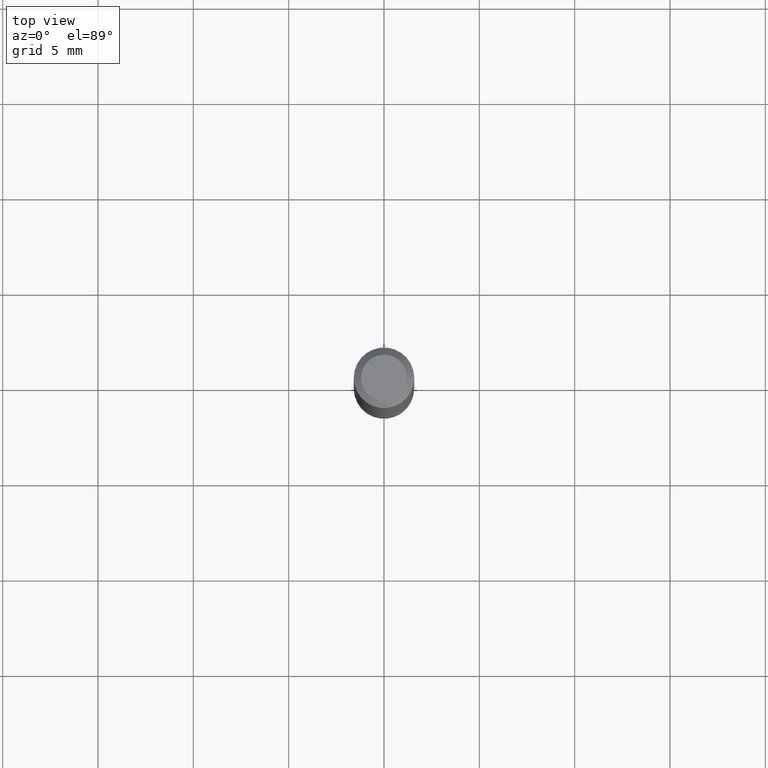
[diagram: clean part render]
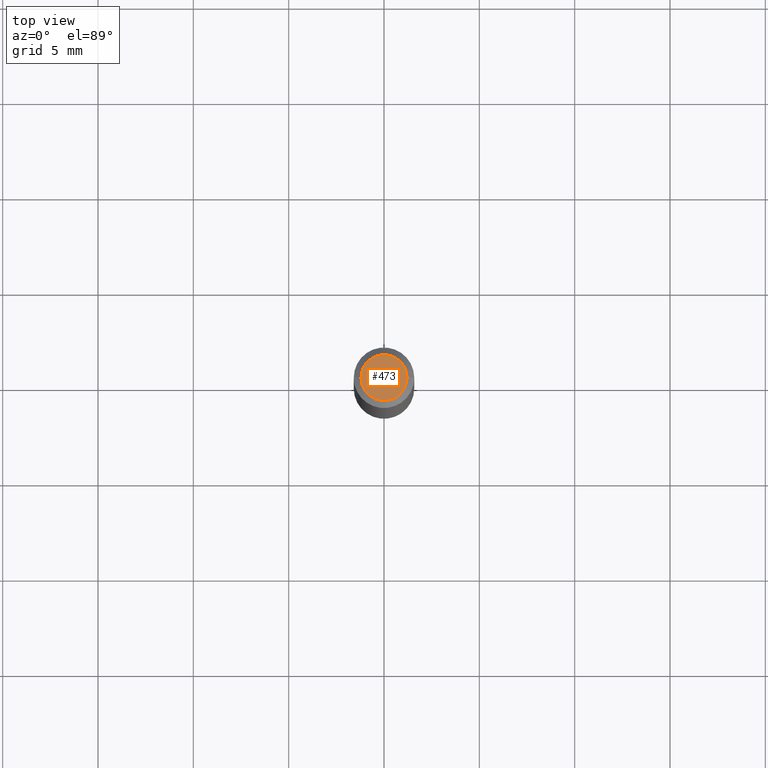
[diagram: same view with one face highlighted and labeled with its STEP entity id]
A machine part, top view. The second image highlights one B-rep face of the part: STEP entity #473.
In plain terms, the highlighted planar face has unit normal (0, -0, -1).
Its self-contained STEP definition (entity closure, byte-faithful):
#88 = CARTESIAN_POINT ( 'NONE',  ( -6.680649051745406845E-45, 9.538196290434862081E-31, 2.731847993664263218E-16 ) ) ;
#94 = DIRECTION ( 'NONE',  ( 1.000000000000000000, -6.982962677686266711E-15, 4.852736867747365086E-29 ) ) ;
#119 = DIRECTION ( 'NONE',  ( 2.438088387897960049E-29, -3.491481338843145188E-15, -1.000000000000000000 ) ) ;
#128 = VERTEX_POINT ( 'NONE', #223 ) ;
#133 = VERTEX_POINT ( 'NONE', #503 ) ;
#160 = FACE_OUTER_BOUND ( 'NONE', #397, .T. ) ;
#170 = CARTESIAN_POINT ( 'NONE',  ( -6.680649051745406845E-45, 9.538196290434862081E-31, 2.731847993664263218E-16 ) ) ;
#175 = ORIENTED_EDGE ( 'NONE', *, *, #325, .T. ) ;
#176 = CIRCLE ( 'NONE', #361, 0.04750000000000000749 ) ;
#205 = AXIS2_PLACEMENT_3D ( 'NONE', #275, #119, #239 ) ;
#223 = CARTESIAN_POINT ( 'NONE',  ( -0.04750000000000000749, 3.578768372314221353E-16, 2.731847993664239060E-16 ) ) ;
#225 = DIRECTION ( 'NONE',  ( -2.445468806185136597E-29, 3.491481338843145583E-15, 1.000000000000000000 ) ) ;
#239 = DIRECTION ( 'NONE',  ( -1.000000000000000000, 6.982962677686265922E-15, -4.876176775795935793E-29 ) ) ;
#275 = CARTESIAN_POINT ( 'NONE',  ( 3.316907271900976589E-16, 0.04750000000000000749, -2.925296391183627249E-17 ) ) ;
#304 = EDGE_CURVE ( 'NONE', #128, #133, #504, .T. ) ;
#325 = EDGE_CURVE ( 'NONE', #133, #128, #176, .T. ) ;
#361 = AXIS2_PLACEMENT_3D ( 'NONE', #88, #225, #381 ) ;
#364 = AXIS2_PLACEMENT_3D ( 'NONE', #170, #485, #94 ) ;
#381 = DIRECTION ( 'NONE',  ( 1.000000000000000000, -6.982962677686266711E-15, 4.852736867747365086E-29 ) ) ;
#397 = EDGE_LOOP ( 'NONE', ( #401, #175 ) ) ;
#401 = ORIENTED_EDGE ( 'NONE', *, *, #304, .T. ) ;
#426 = PLANE ( 'NONE',  #205 ) ;
#473 = ADVANCED_FACE ( 'NONE', ( #160 ), #426, .F. ) ;
#485 = DIRECTION ( 'NONE',  ( -2.445468806185136597E-29, 3.491481338843145583E-15, 1.000000000000000000 ) ) ;
#503 = CARTESIAN_POINT ( 'NONE',  ( 0.04750000000000000749, -4.035134999187568762E-16, 2.731847993664288856E-16 ) ) ;
#504 = CIRCLE ( 'NONE', #364, 0.04750000000000000749 ) ;